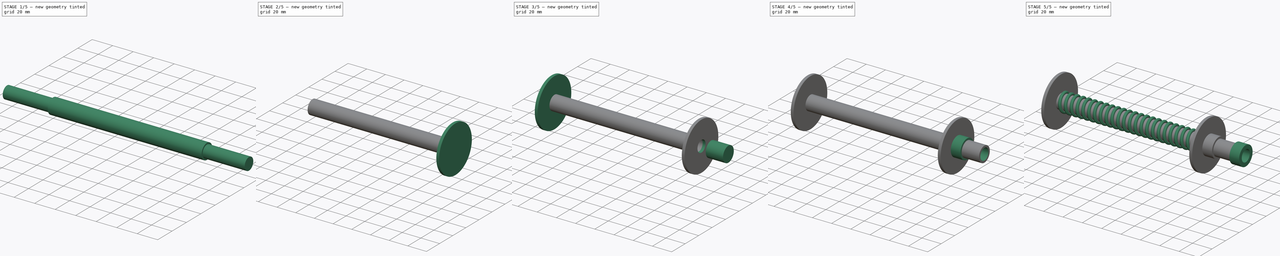
[diagram: build sequence overview — one tinted view per stage of 5, left to right]
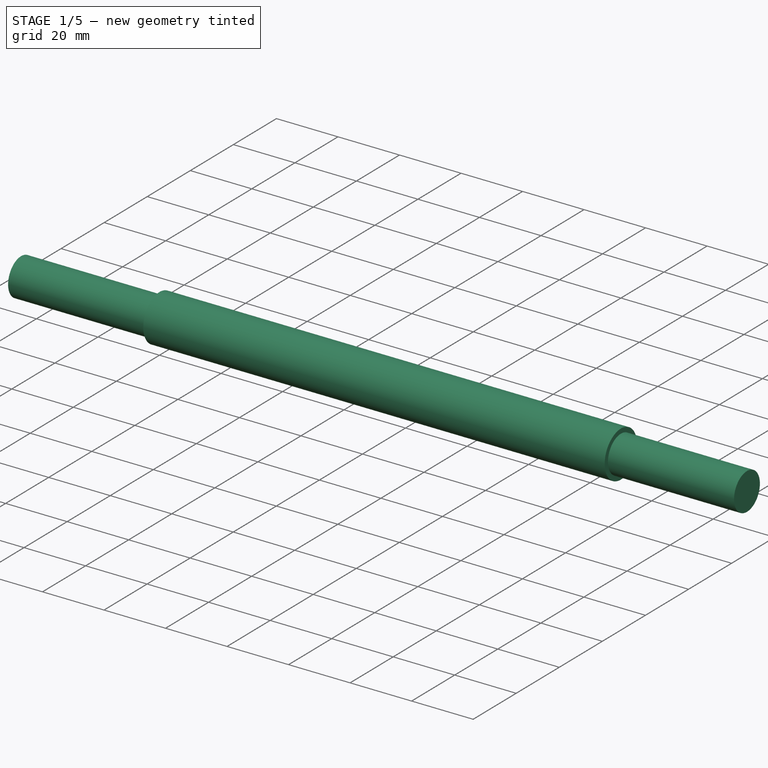
[diagram: stage 1 of 5 — iso view after this stage's code; geometry added in this stage tinted green]
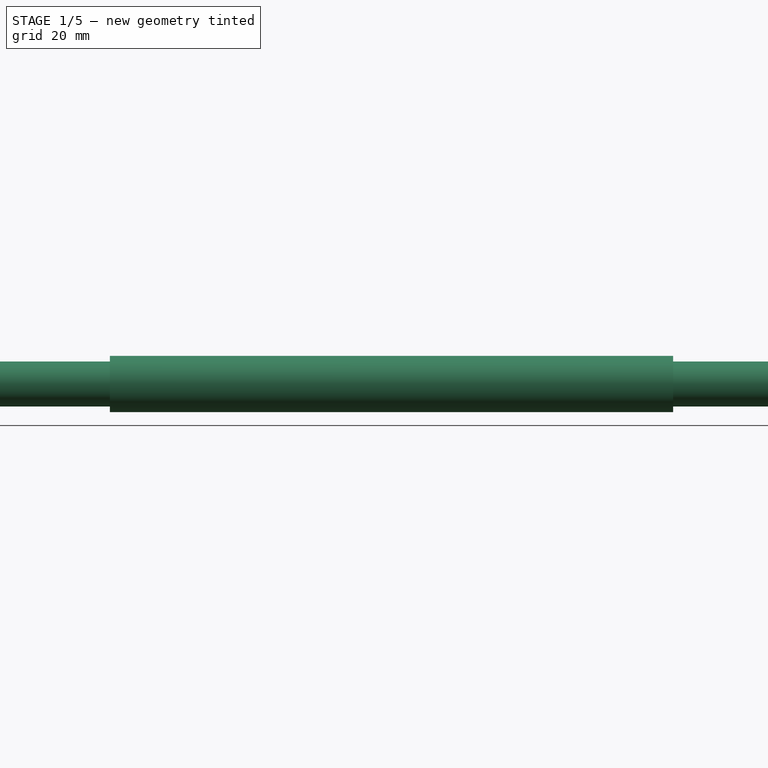
[diagram: stage 1 of 5 — front view after this stage's code; geometry added in this stage tinted green]
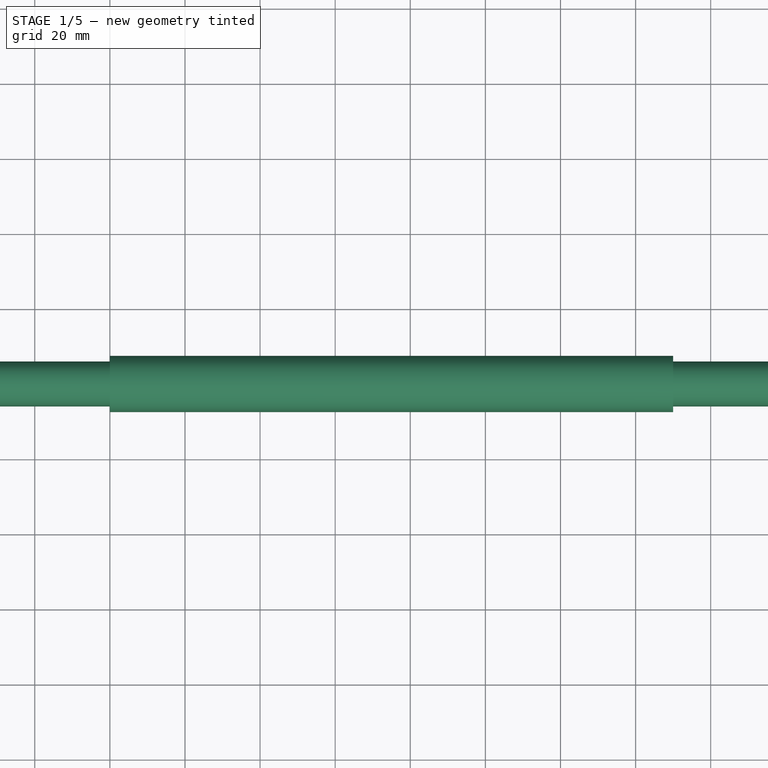
[diagram: stage 1 of 5 — top view after this stage's code; geometry added in this stage tinted green]
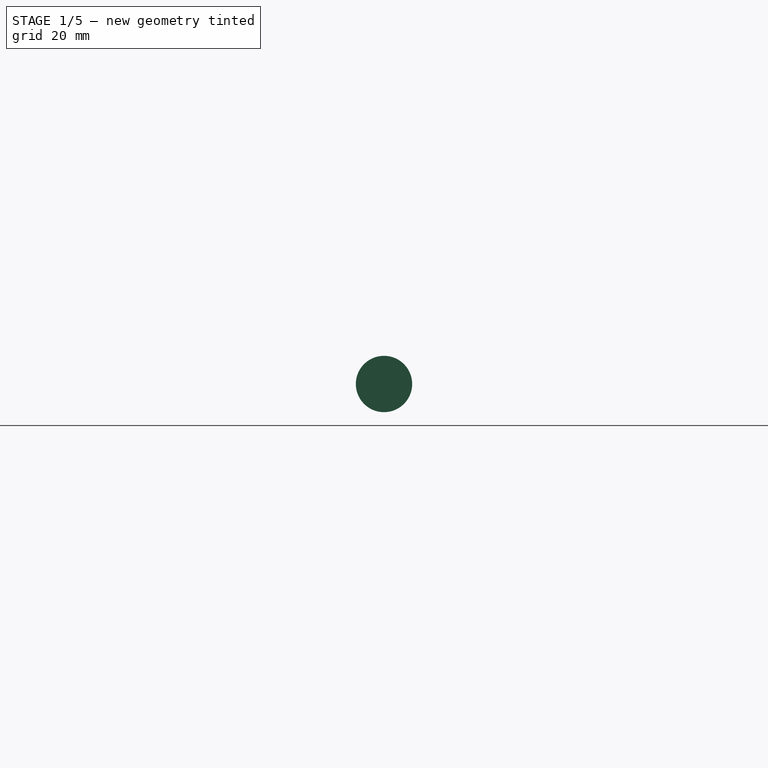
[diagram: stage 1 of 5 — right view after this stage's code; geometry added in this stage tinted green]
FCSTD DOCUMENT  (FreeCAD 0.15R4671 (Git))
Label: spine
License: All rights reserved
LicenseURL: http://en.wikipedia.org/wiki/All_rights_reserved
objects: Part::Cylinder×8, Part::Cut×7, Sketcher::SketchObject×1, Part::Helix×1, Part::Sweep×1
note: 18 computed .brp shape members not serialized (recipe doc carries the construction recipe); baked Part::Feature solids carry a one-line shape summary decoded from their .brp

FEATURE [Part::Cylinder] Cylinder  label="pvc"
  Angle = 360
  Height = 150
  Placement = pos=(0,0,0) rot=(0,1,0;1.5708rad)
  Radius = 7.5
FEATURE [Part::Cylinder] Cylinder003  label="pvc001"
  Angle = 360
  Height = 150
  Placement = pos=(0,0,0) rot=(0,1,0;1.5708rad)
  Radius = 5.5
FEATURE [Part::Cylinder] Cylinder007  label="connector_bore"
  Angle = 360
  Height = 236
  Placement = pos=(-45,0,0) rot=(0,1,0;1.5708rad)
  Radius = 6
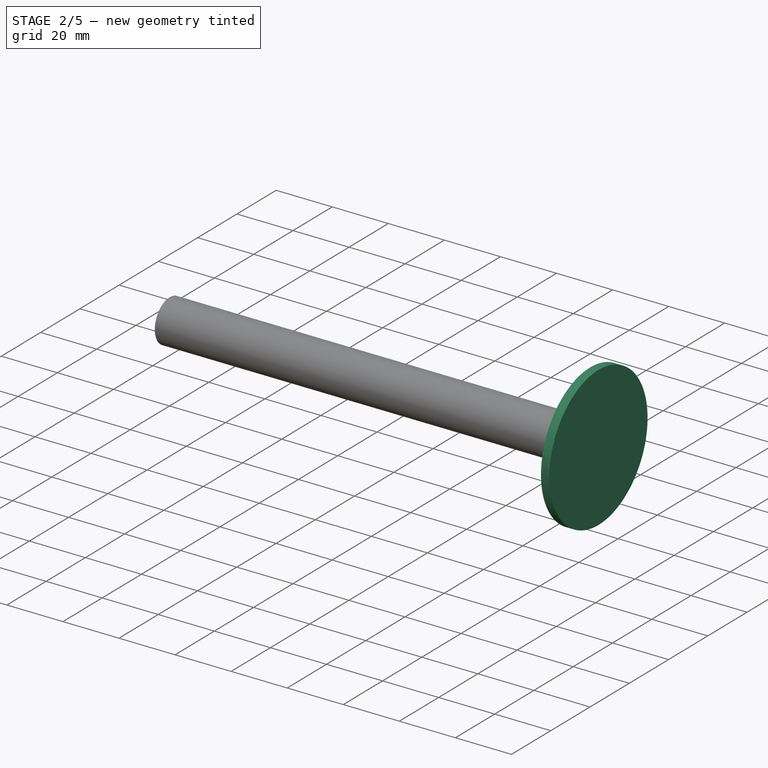
[diagram: stage 2 of 5 — iso view after this stage's code; geometry added in this stage tinted green]
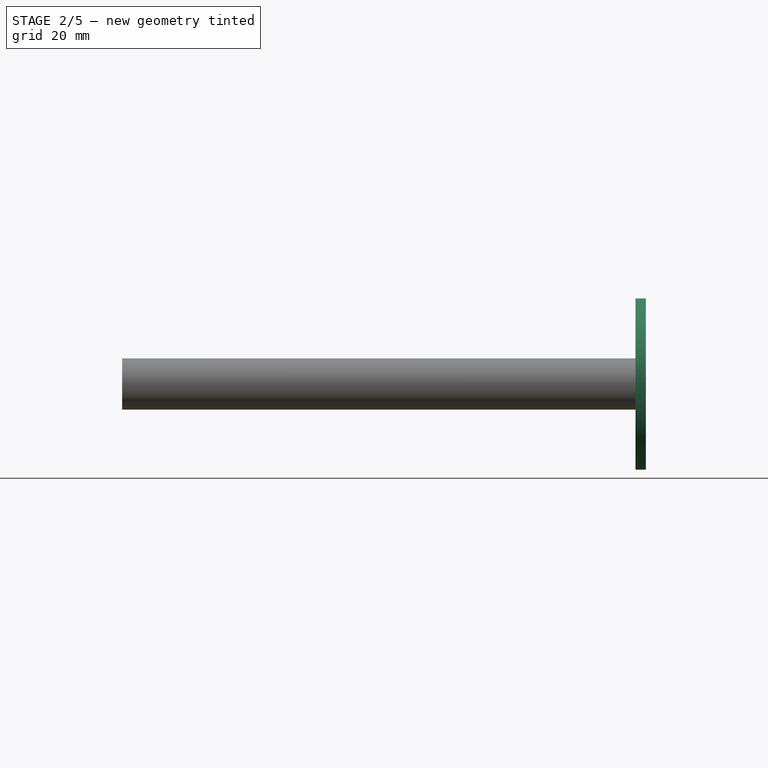
[diagram: stage 2 of 5 — front view after this stage's code; geometry added in this stage tinted green]
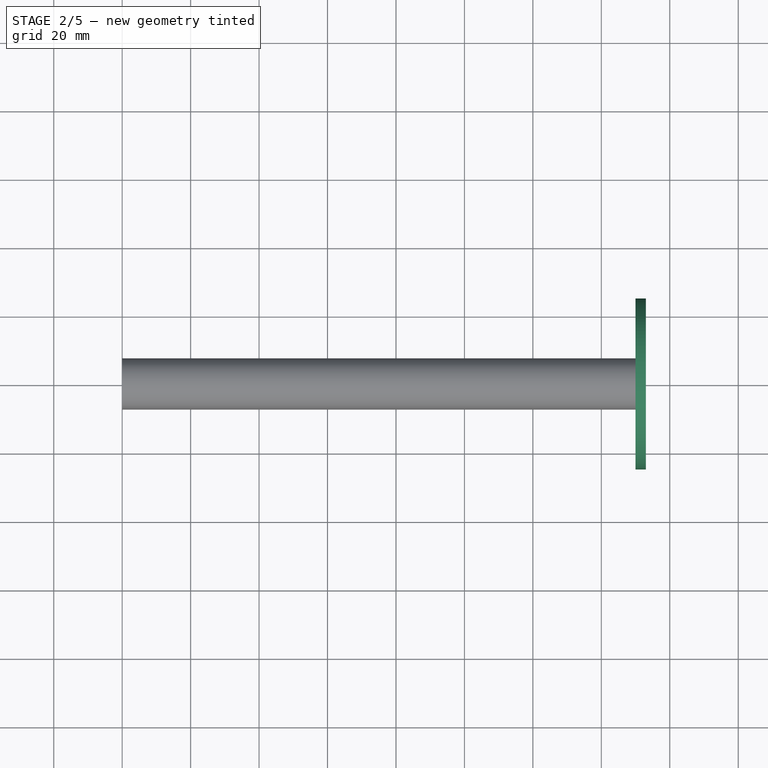
[diagram: stage 2 of 5 — top view after this stage's code; geometry added in this stage tinted green]
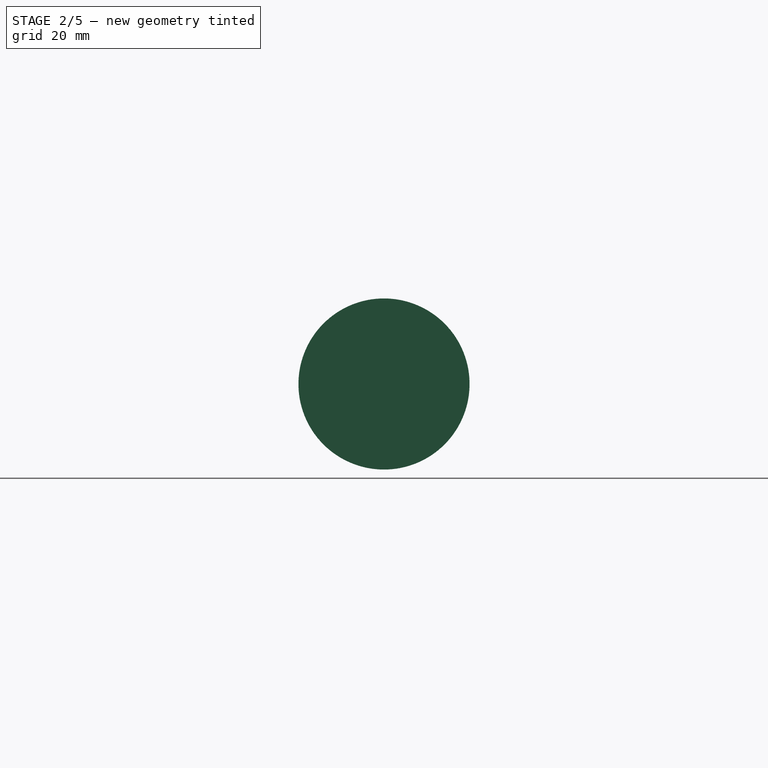
[diagram: stage 2 of 5 — right view after this stage's code; geometry added in this stage tinted green]
FEATURE [Part::Cylinder] Cylinder002  label="disc001"
  Angle = 360
  Height = 3
  Placement = pos=(150,0,0) rot=(0,1,0;1.5708rad)
  Radius = 25
FEATURE [Part::Cut] Cut  label="pvctube"
  Base = -> Cylinder
  Tool = -> Cylinder003
FEATURE [Part::Cut] Cut006
  Base = -> Cut
  Tool = -> Cylinder007
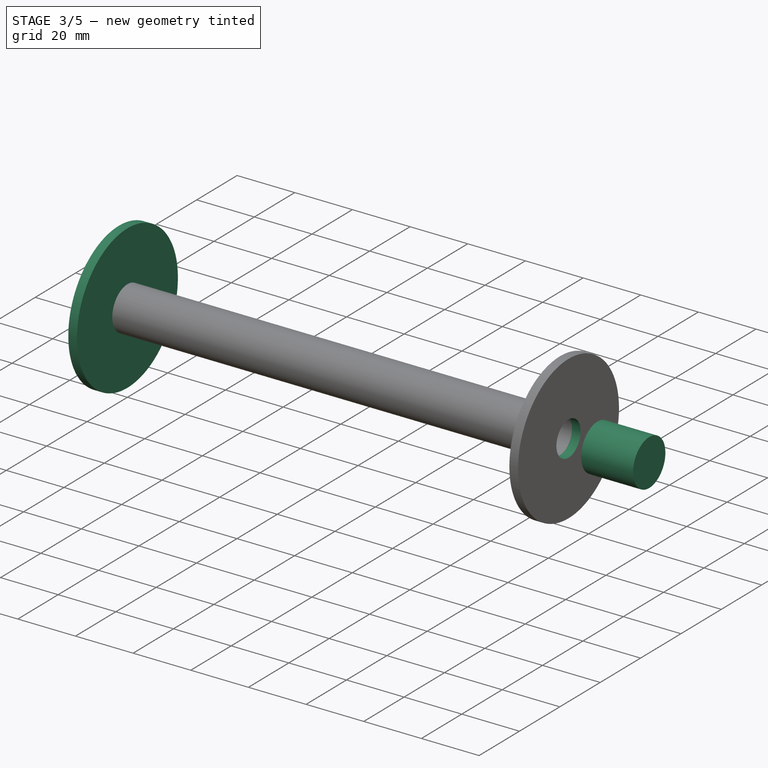
[diagram: stage 3 of 5 — iso view after this stage's code; geometry added in this stage tinted green]
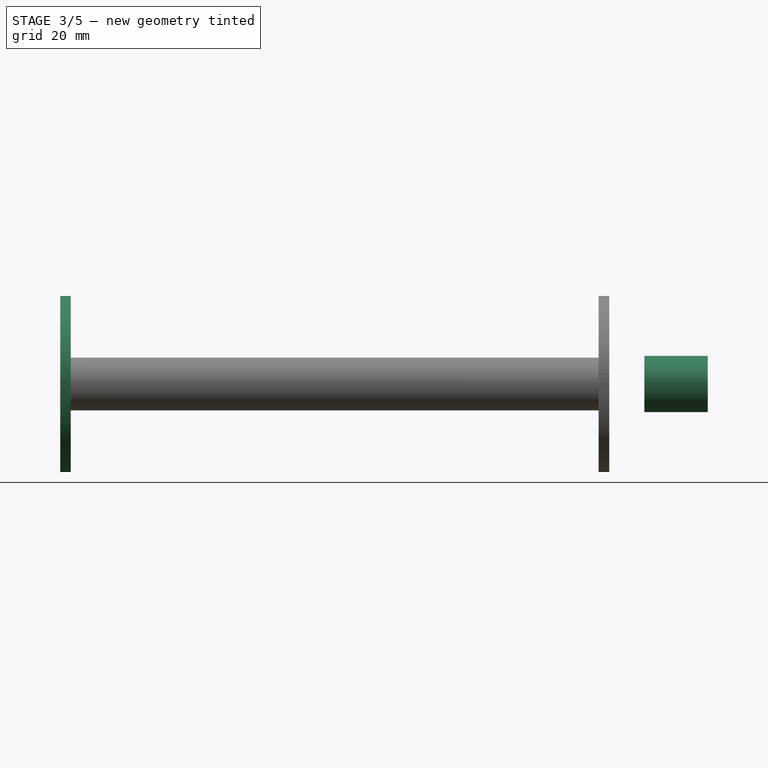
[diagram: stage 3 of 5 — front view after this stage's code; geometry added in this stage tinted green]
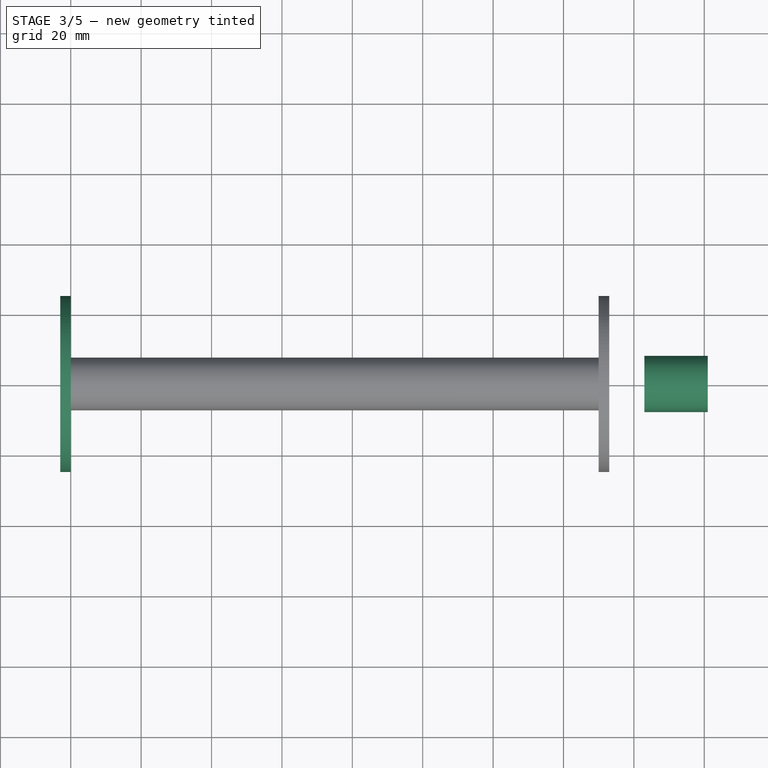
[diagram: stage 3 of 5 — top view after this stage's code; geometry added in this stage tinted green]
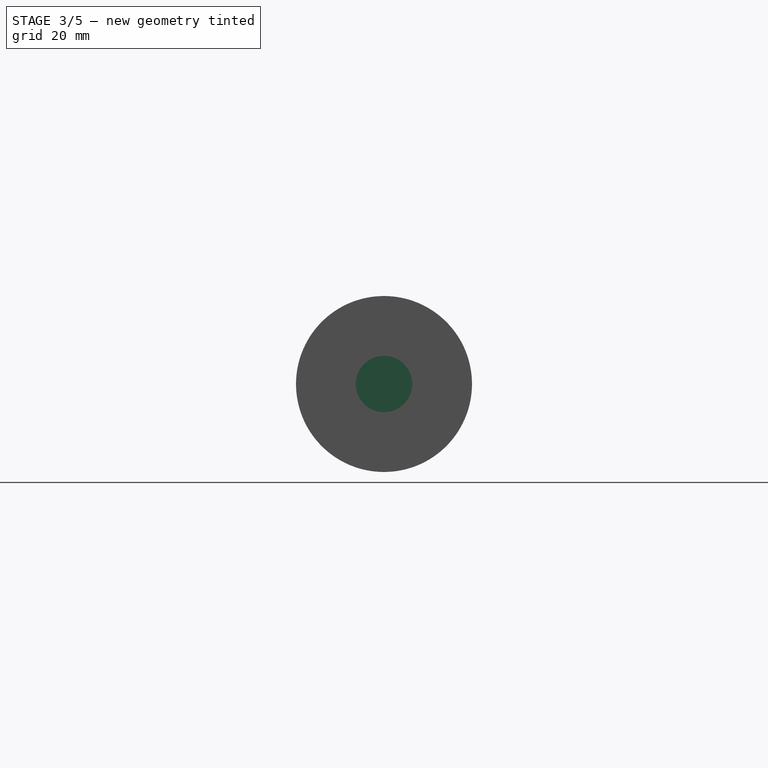
[diagram: stage 3 of 5 — right view after this stage's code; geometry added in this stage tinted green]
FEATURE [Part::Cylinder] Cylinder001  label="disc"
  Angle = 360
  Height = 3
  Placement = pos=(-3,0,0) rot=(0,1,0;1.5708rad)
  Radius = 25
FEATURE [Part::Cylinder] Cylinder005  label="connector_neck"
  Angle = 360
  Height = 18
  Placement = pos=(163,0,0) rot=(0,1,0;1.5708rad)
  Radius = 8
FEATURE [Part::Cut] Cut004
  Base = -> Cylinder001
  Tool = -> Cylinder007
FEATURE [Part::Cut] Cut005
  Base = -> Cylinder002
  Tool = -> Cylinder007
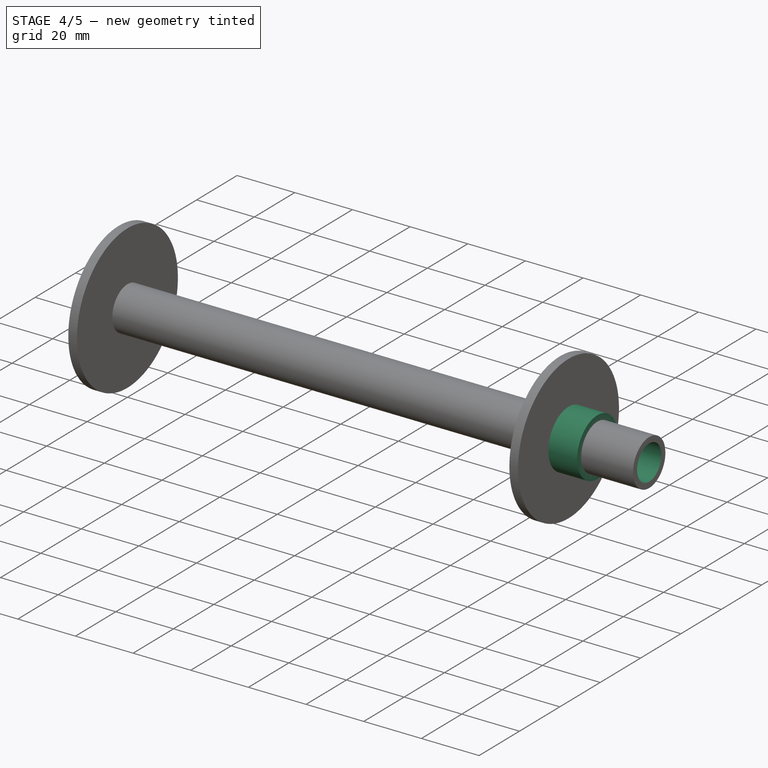
[diagram: stage 4 of 5 — iso view after this stage's code; geometry added in this stage tinted green]
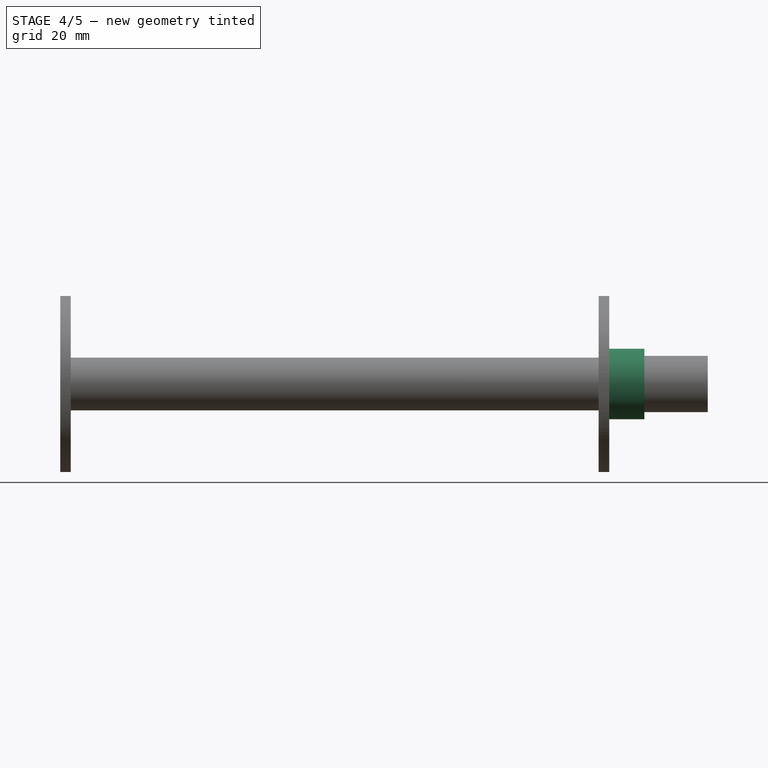
[diagram: stage 4 of 5 — front view after this stage's code; geometry added in this stage tinted green]
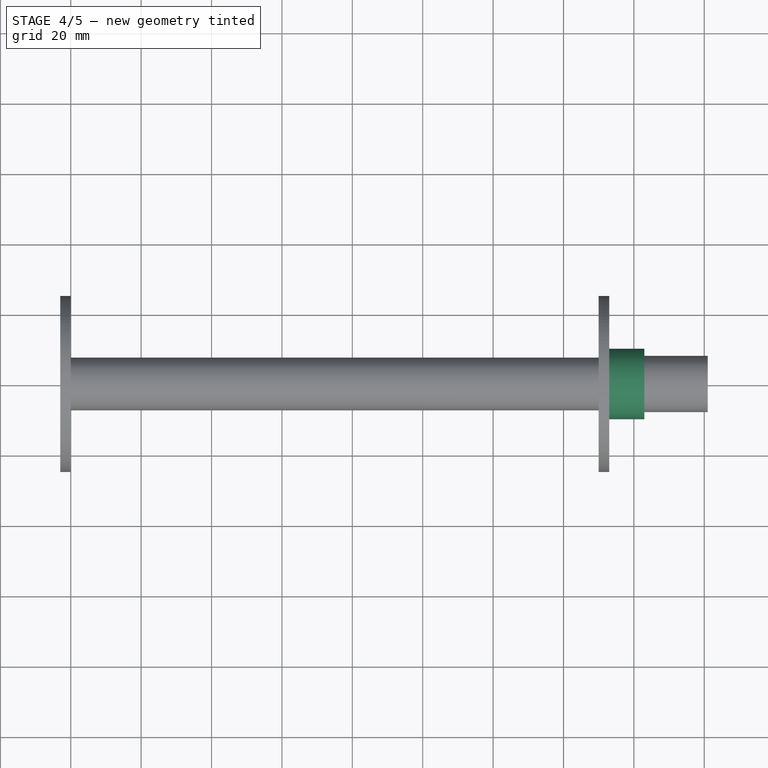
[diagram: stage 4 of 5 — top view after this stage's code; geometry added in this stage tinted green]
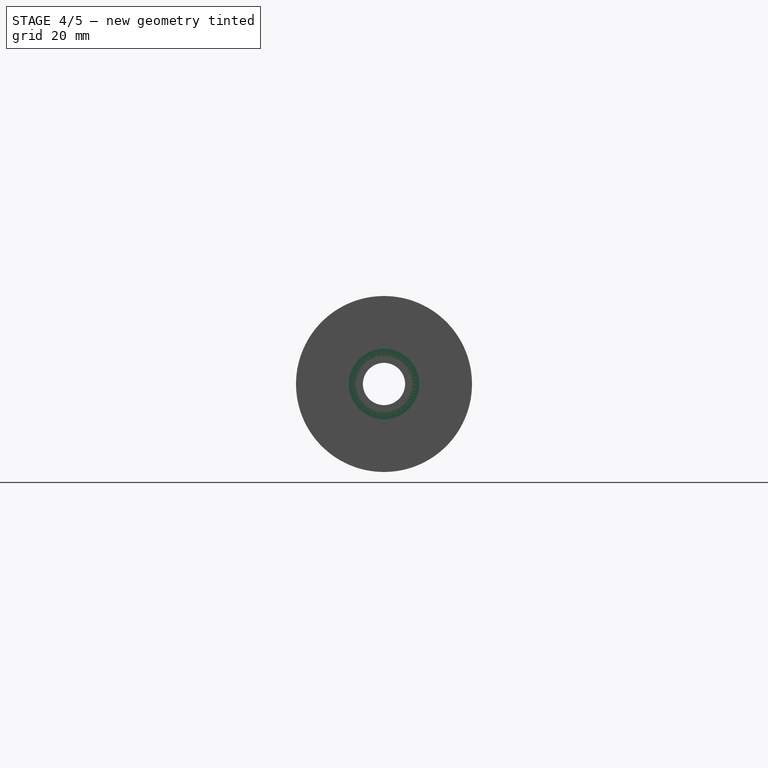
[diagram: stage 4 of 5 — right view after this stage's code; geometry added in this stage tinted green]
FEATURE [Part::Cylinder] Cylinder004  label="connector_shoulder"
  Angle = 360
  Height = 10
  Placement = pos=(153,0,0) rot=(0,1,0;1.5708rad)
  Radius = 10
FEATURE [Part::Cut] Cut002
  Base = -> Cylinder004
  Tool = -> Cylinder007
FEATURE [Part::Cut] Cut003
  Base = -> Cylinder005
  Tool = -> Cylinder007
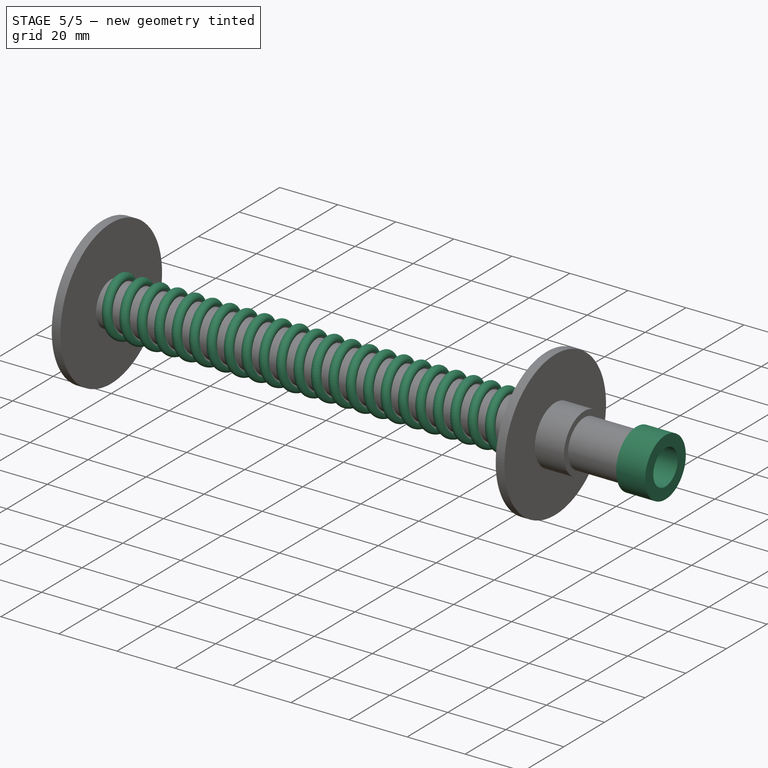
[diagram: stage 5 of 5 — iso view after this stage's code; geometry added in this stage tinted green]
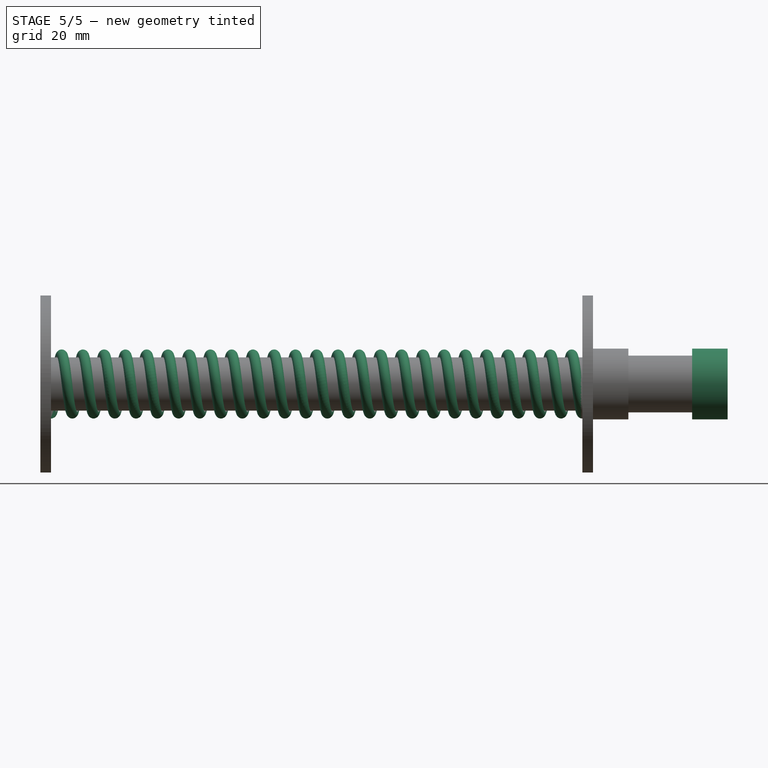
[diagram: stage 5 of 5 — front view after this stage's code; geometry added in this stage tinted green]
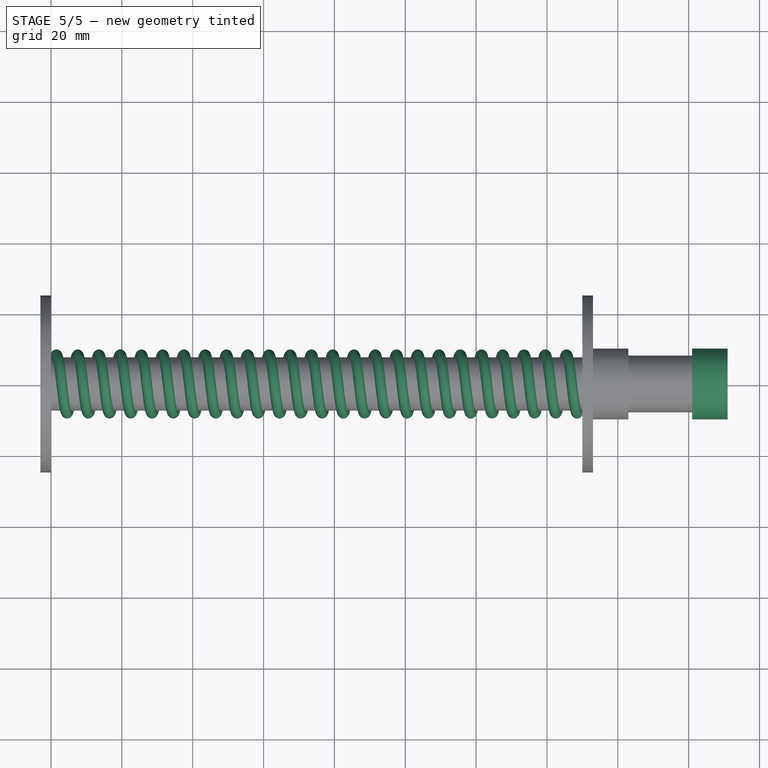
[diagram: stage 5 of 5 — top view after this stage's code; geometry added in this stage tinted green]
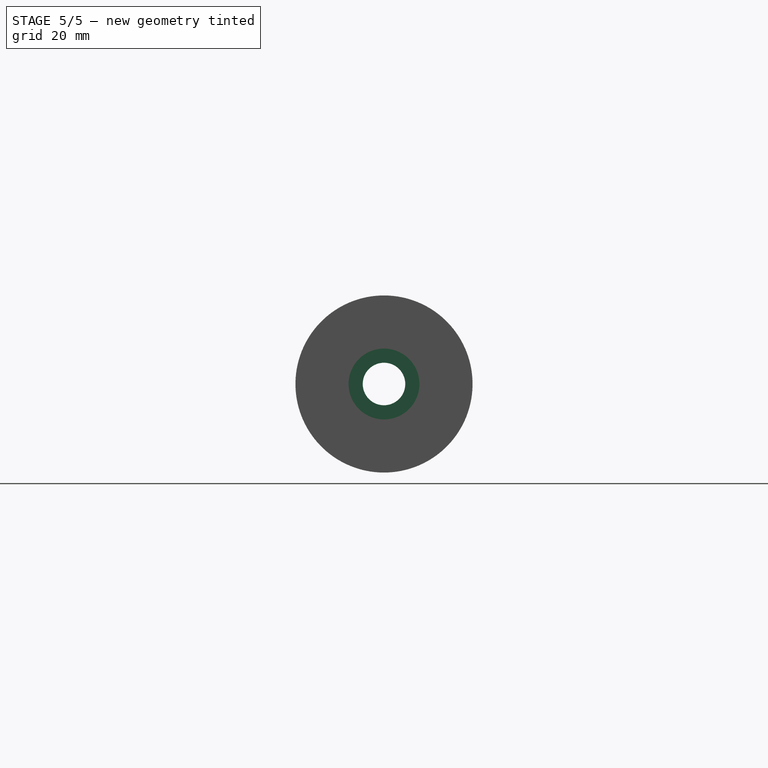
[diagram: stage 5 of 5 — right view after this stage's code; geometry added in this stage tinted green]
FEATURE [Sketcher::SketchObject] Sketch
  Placement = pos=(0,0,0) rot=(1,0,0;1.5708rad)
  sketch-geometry (1):
    g0: Circle CenterX=8.25 CenterY=0 CenterZ=0 NormalX=0 NormalY=0 NormalZ=1 Radius=1.5
  constraints (3):
    c: Radius(g0) = 1.5
    c: DistanceX(g0) = 8.25
    c: DistanceY(g0) = 0
FEATURE [Part::Helix] Helix  label="Helix007"
  Angle = 0
  Height = 150
  LocalCoord = 0
  Pitch = 6
  Radius = 8.25
  Style = 1
FEATURE [Part::Sweep] Sweep  label="spring"
  Frenet = false
  Placement = pos=(0,0,0) rot=(0,1,0;1.5708rad)
  Sections = -> [Sketch]
  Solid = true
  Spine = -> Helix [Edge1,Edge2,Edge3,Edge4,Edge5,Edge6,Edge7,Edge8,Edge9,Edge10,Edge11,Edge12,Edge13,Edge14,Edge15,Edge16,Edge17,Edge18,Edge19,Edge20,Edge21,Edge22,Edge23,Edge24,Edge25]
  Transition = 1
FEATURE [Part::Cylinder] Cylinder006  label="connector_head"
  Angle = 360
  Height = 10
  Placement = pos=(181,0,0) rot=(0,1,0;1.5708rad)
  Radius = 10
FEATURE [Part::Cut] Cut001
  Base = -> Cylinder006
  Tool = -> Cylinder007
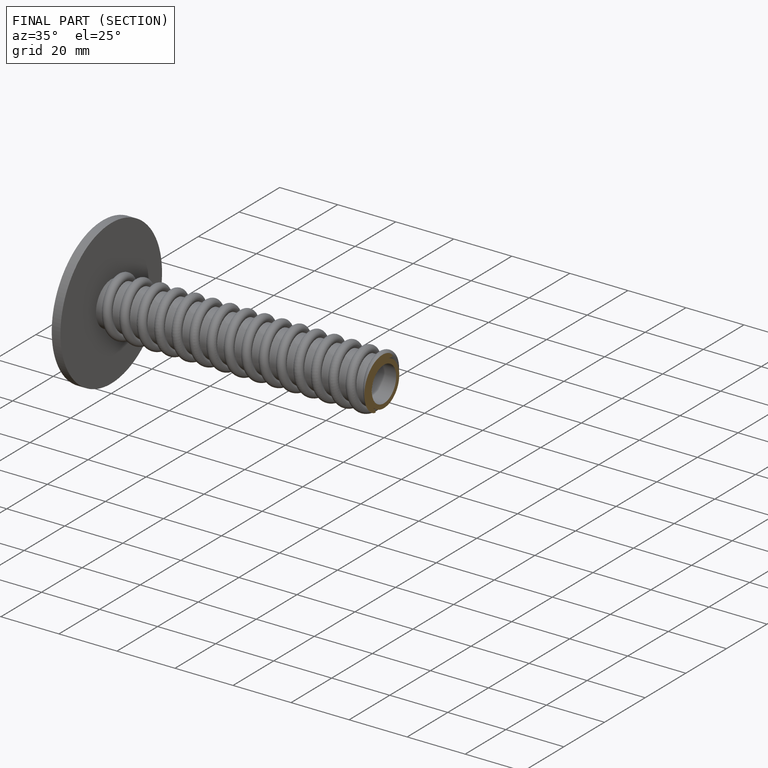
[diagram: finished part — half-section view (interior)]
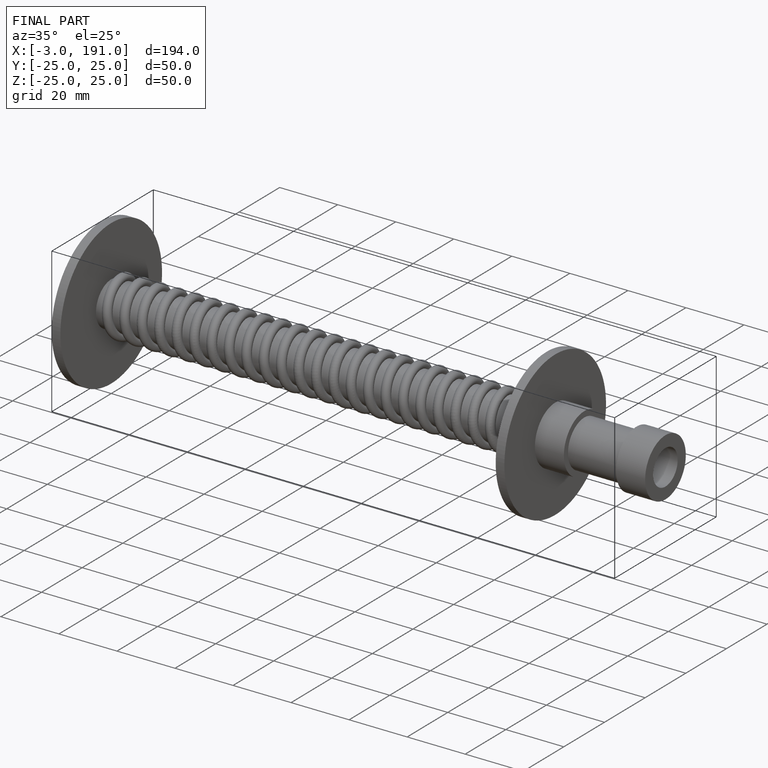
[diagram: finished part — iso view with bounding-box wireframe]
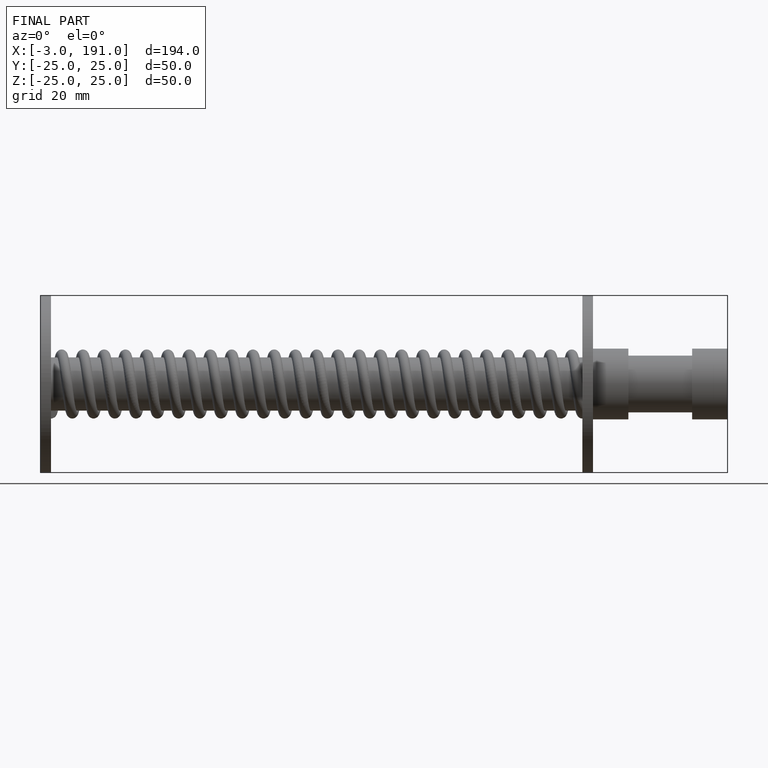
[diagram: finished part — front view with bounding-box wireframe]
